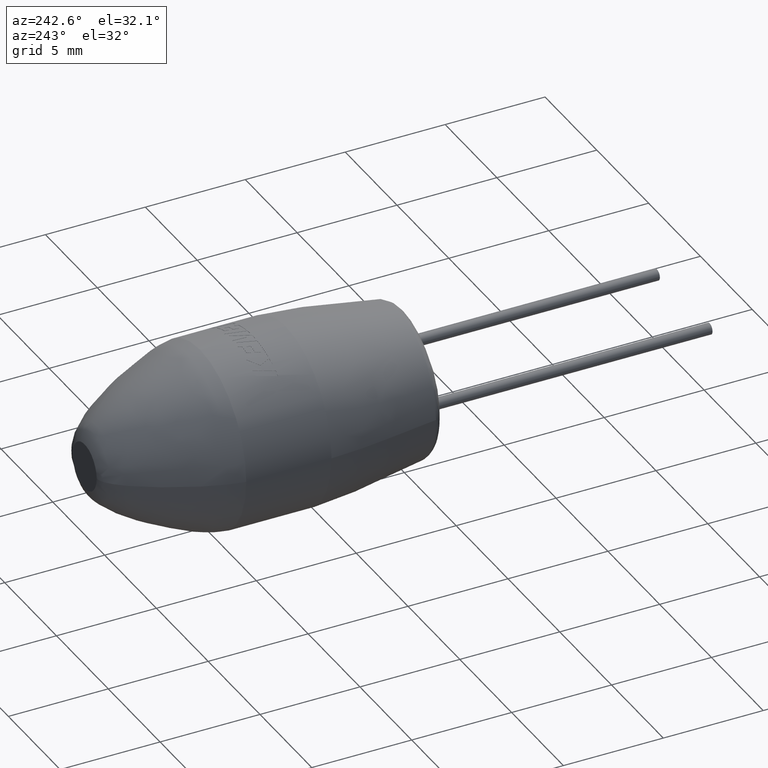
[diagram: clean part render]
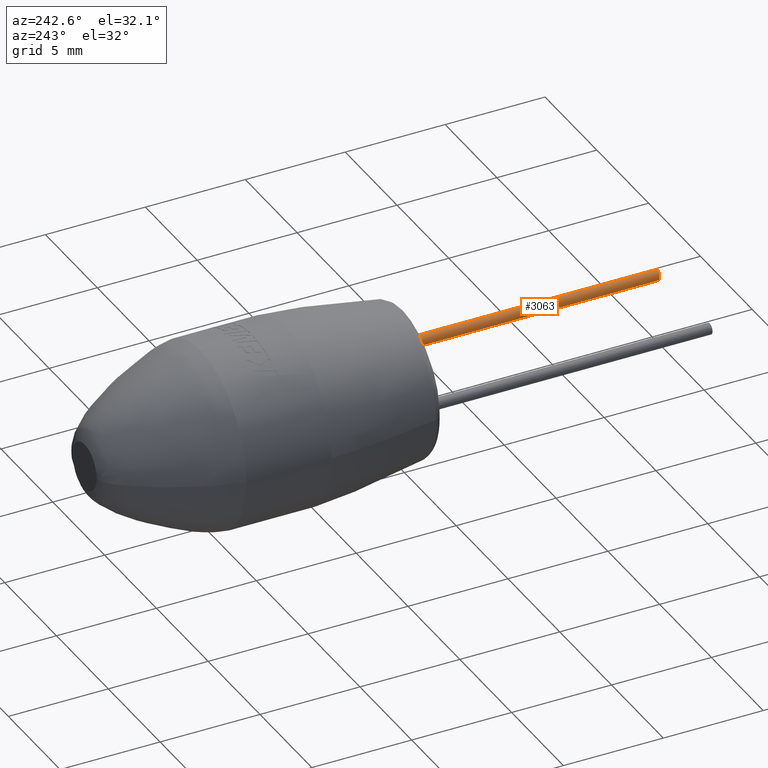
[diagram: same view with one face highlighted and labeled with its STEP entity id]
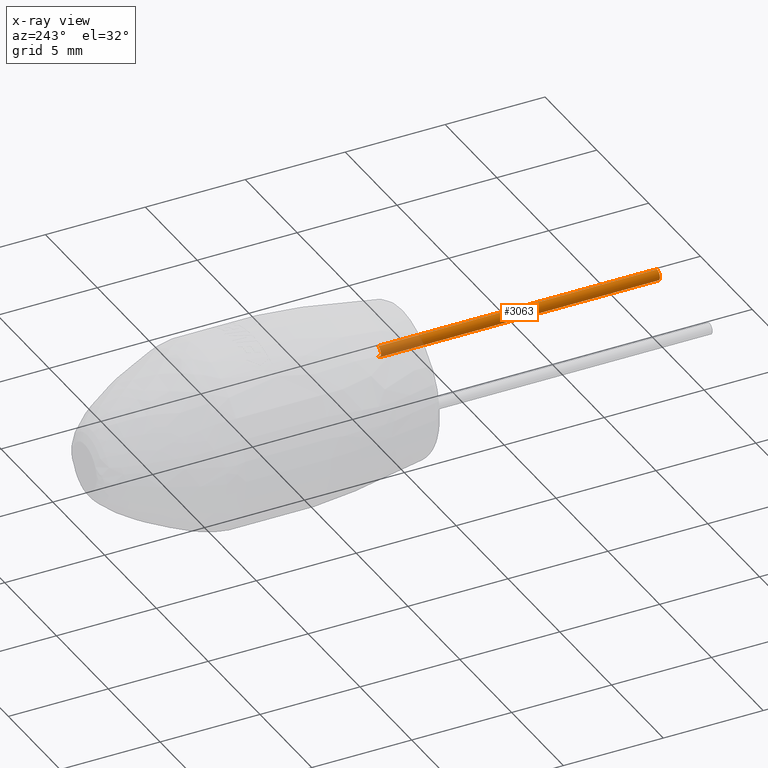
[diagram: x-ray of the same camera — body ghosted, the highlighted face saturated]
A machine part, auxiliary view. The second image highlights one B-rep face of the part: STEP entity #3063.
The next image is the same camera in x-ray: the body ghosted, the highlighted face saturated — about 15% of this face is hidden behind the body in this view.
In plain terms, the highlighted cylindrical surface (edge-blend (fillet) strip) has radius 0.275 mm, axis along (-0, 1, -0).
Its self-contained STEP definition (entity closure, byte-faithful):
#48 = CARTESIAN_POINT ( 'NONE',  ( 2.540000000000000000, 0.0000000000000000000, -0.2750000000000002400 ) ) ;
#54 = VECTOR ( 'NONE', #2088, 1000.000000000000000 ) ;
#105 = VERTEX_POINT ( 'NONE', #2454 ) ;
#123 = AXIS2_PLACEMENT_3D ( 'NONE', #1337, #2445, #1299 ) ;
#227 = ORIENTED_EDGE ( 'NONE', *, *, #1610, .T. ) ;
#417 = DIRECTION ( 'NONE',  ( 0.0000000000000000000, 0.0000000000000000000, -1.000000000000000000 ) ) ;
#778 = EDGE_CURVE ( 'NONE', #2436, #105, #3199, .T. ) ;
#810 = DIRECTION ( 'NONE',  ( -0.0000000000000000000, 1.000000000000000000, -0.0000000000000000000 ) ) ;
#870 = AXIS2_PLACEMENT_3D ( 'NONE', #2561, #810, #1409 ) ;
#949 = FACE_OUTER_BOUND ( 'NONE', #2614, .T. ) ;
#1049 = CARTESIAN_POINT ( 'NONE',  ( 2.540000000000000000, -13.96000000000000100, -0.2750000000000002400 ) ) ;
#1051 = ORIENTED_EDGE ( 'NONE', *, *, #778, .F. ) ;
#1166 = EDGE_CURVE ( 'NONE', #1557, #2436, #2405, .T. ) ;
#1299 = DIRECTION ( 'NONE',  ( 0.0000000000000000000, 0.0000000000000000000, 1.000000000000000000 ) ) ;
#1317 = ORIENTED_EDGE ( 'NONE', *, *, #1568, .T. ) ;
#1337 = CARTESIAN_POINT ( 'NONE',  ( 2.540000000000000000, -13.96000000000000100, 0.0000000000000000000 ) ) ;
#1409 = DIRECTION ( 'NONE',  ( 0.0000000000000000000, 0.0000000000000000000, -1.000000000000000000 ) ) ;
#1557 = VERTEX_POINT ( 'NONE', #1049 ) ;
#1568 = EDGE_CURVE ( 'NONE', #3341, #105, #3679, .T. ) ;
#1610 = EDGE_CURVE ( 'NONE', #1557, #3341, #1808, .T. ) ;
#1808 = CIRCLE ( 'NONE', #870, 0.2750000000000002400 ) ;
#1921 = DIRECTION ( 'NONE',  ( -0.0000000000000000000, 1.000000000000000000, -0.0000000000000000000 ) ) ;
#1953 = ORIENTED_EDGE ( 'NONE', *, *, #1166, .F. ) ;
#2088 = DIRECTION ( 'NONE',  ( -0.0000000000000000000, 1.000000000000000000, -0.0000000000000000000 ) ) ;
#2405 = LINE ( 'NONE', #2426, #3530 ) ;
#2420 = CARTESIAN_POINT ( 'NONE',  ( 2.540000000000000000, -13.96000000000000100, 0.2750000000000002400 ) ) ;
#2426 = CARTESIAN_POINT ( 'NONE',  ( 2.540000000000000000, -13.96000000000000100, -0.2750000000000002400 ) ) ;
#2436 = VERTEX_POINT ( 'NONE', #48 ) ;
#2445 = DIRECTION ( 'NONE',  ( -0.0000000000000000000, 1.000000000000000000, -0.0000000000000000000 ) ) ;
#2454 = CARTESIAN_POINT ( 'NONE',  ( 2.540000000000000000, 0.0000000000000000000, 0.2750000000000002400 ) ) ;
#2561 = CARTESIAN_POINT ( 'NONE',  ( 2.540000000000000000, -13.96000000000000100, 0.0000000000000000000 ) ) ;
#2586 = CARTESIAN_POINT ( 'NONE',  ( 2.540000000000000000, -13.96000000000000100, 0.2750000000000002400 ) ) ;
#2614 = EDGE_LOOP ( 'NONE', ( #1953, #227, #1317, #1051 ) ) ;
#2980 = DIRECTION ( 'NONE',  ( -0.0000000000000000000, 1.000000000000000000, -0.0000000000000000000 ) ) ;
#3063 = ADVANCED_FACE ( 'NONE', ( #949 ), #3064, .T. ) ;
#3064 = CYLINDRICAL_SURFACE ( 'NONE', #123, 0.2750000000000002400 ) ;
#3199 = CIRCLE ( 'NONE', #3676, 0.2750000000000002400 ) ;
#3275 = CARTESIAN_POINT ( 'NONE',  ( 2.540000000000000000, 0.0000000000000000000, 0.0000000000000000000 ) ) ;
#3341 = VERTEX_POINT ( 'NONE', #2586 ) ;
#3530 = VECTOR ( 'NONE', #1921, 1000.000000000000000 ) ;
#3676 = AXIS2_PLACEMENT_3D ( 'NONE', #3275, #2980, #417 ) ;
#3679 = LINE ( 'NONE', #2420, #54 ) ;